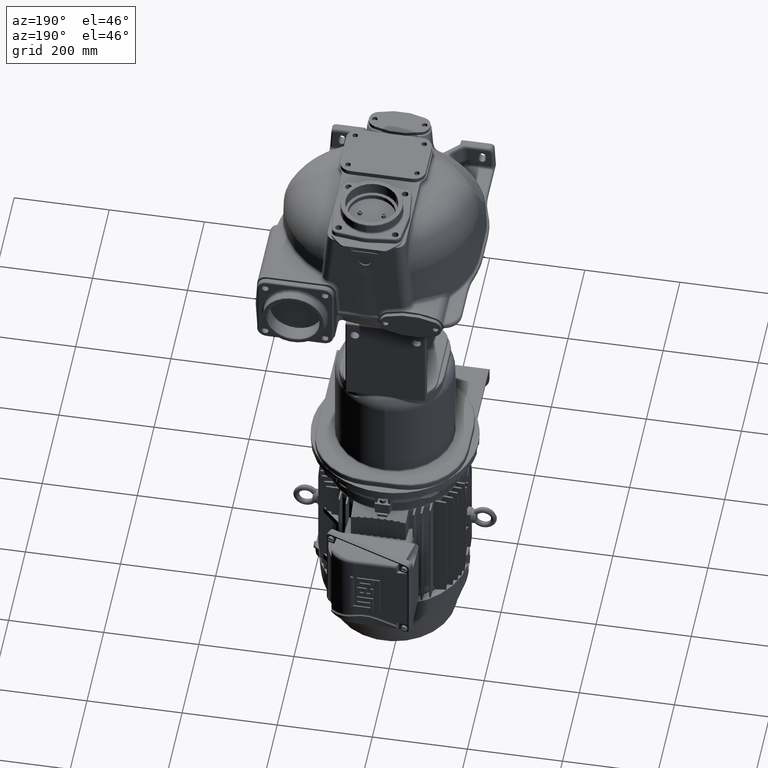
[diagram: clean part render]
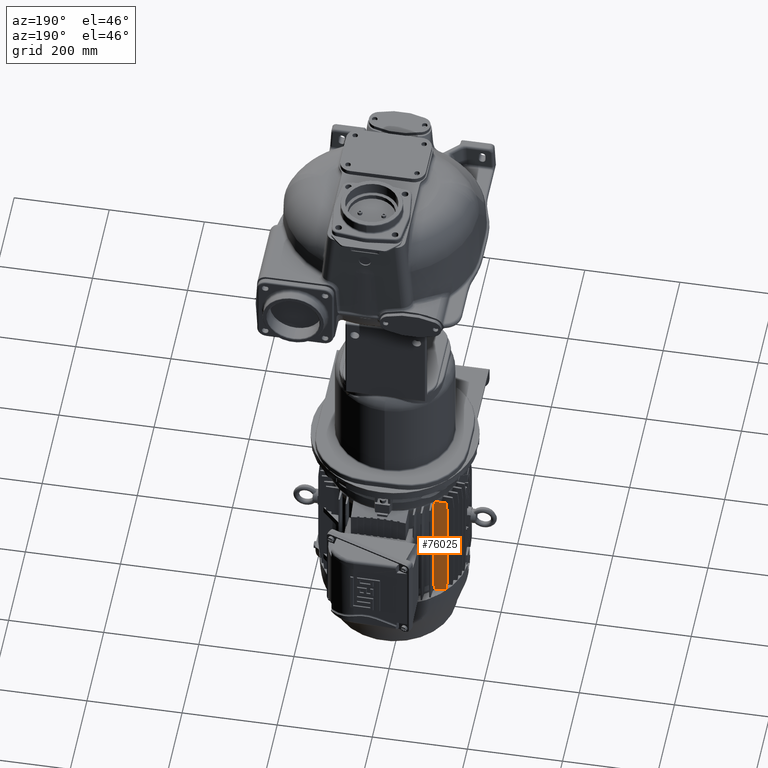
[diagram: same view with one face highlighted and labeled with its STEP entity id]
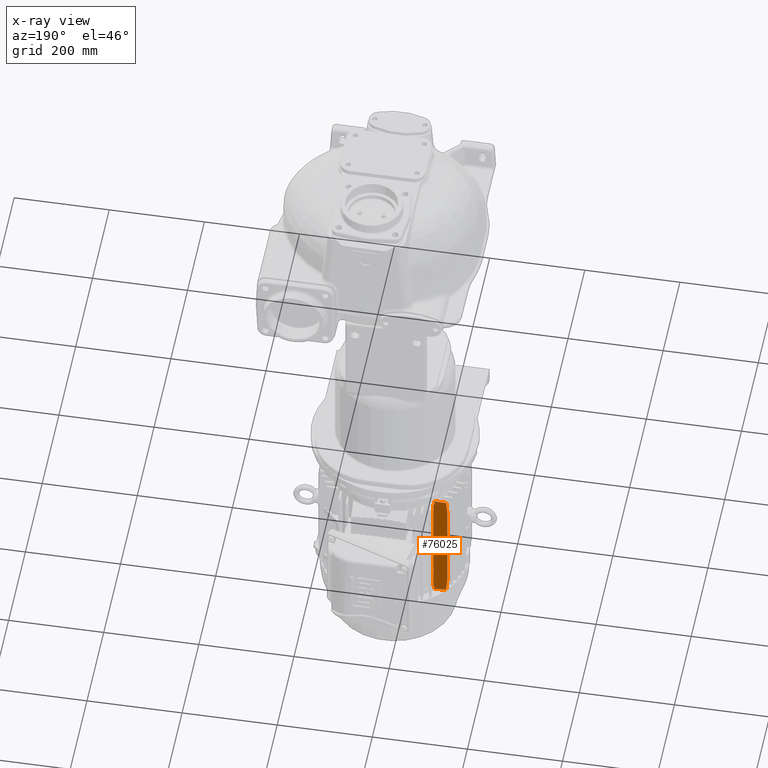
[diagram: x-ray of the same camera — body ghosted, the highlighted face saturated]
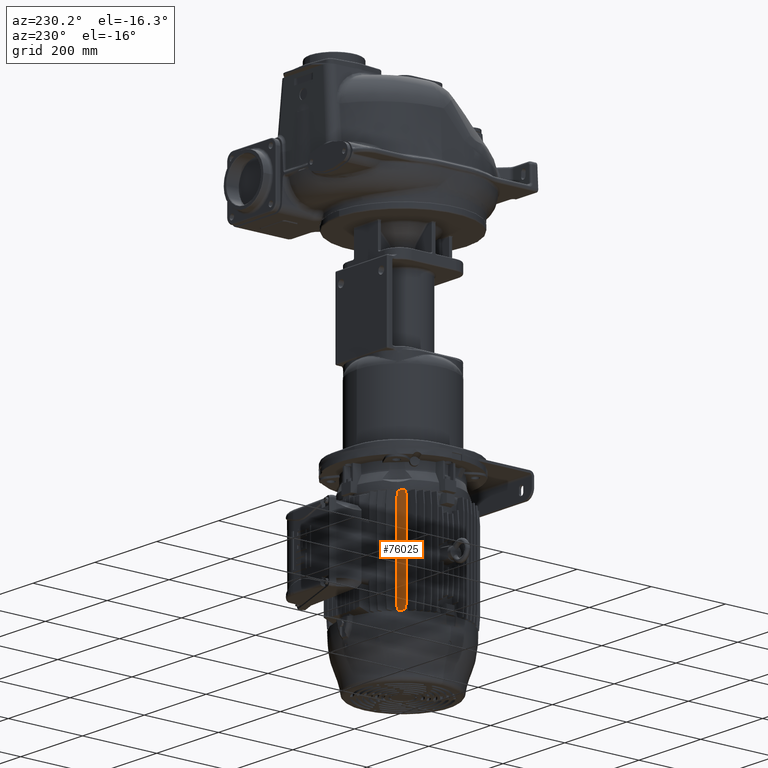
[diagram: same view with one face highlighted and labeled with its STEP entity id]
A machine part, auxiliary view. The second image highlights one B-rep face of the part: STEP entity #76025.
The next image is the same camera in x-ray: the body ghosted, the highlighted face saturated — about 0% of this face is hidden behind the body in this view.
A second angle (auxiliary view) of the same face is appended — the face is thin or edge-on in the first view.
In plain terms, the highlighted planar face has unit normal (0.0349, -0.9994, 0).
Its self-contained STEP definition (entity closure, byte-faithful):
#11937=DIRECTION('',(0.E0,-1.118896511170E-14,1.E0));
#11938=VECTOR('',#11937,5.080310671573E0);
#11939=CARTESIAN_POINT('',(-8.141914949487E1,3.175499585583E2,
-9.550375340094E2));
#11940=LINE('',#11939,#11938);
#18178=DIRECTION('',(-1.398620638962E-14,-1.118896511170E-14,1.E0));
#18179=VECTOR('',#18178,5.080310671573E0);
#18180=CARTESIAN_POINT('',(-8.141914949487E1,3.175499585583E2,
-6.986427766622E2));
#18181=LINE('',#18180,#18179);
#20622=CARTESIAN_POINT('',(-8.141914949487E1,3.175499585583E2,
-6.935624659906E2));
#20623=CARTESIAN_POINT('',(-8.389546970127E1,3.174634835512E2,
-6.937125929974E2));
#20624=CARTESIAN_POINT('',(-8.896721913120E1,3.172863740507E2,
-6.940260940994E2));
#20625=CARTESIAN_POINT('',(-9.688111103716E1,3.170100153402E2,
-6.945331010547E2));
#20626=CARTESIAN_POINT('',(-1.024632826689E2,3.168150804271E2,
-6.949024630499E2));
#20627=CARTESIAN_POINT('',(-1.053224325430E2,3.167152367134E2,
-6.950945351676E2));
#20645=DIRECTION('',(0.E0,0.E0,-1.E0));
#20646=VECTOR('',#20645,2.370833117139E2);
#20647=CARTESIAN_POINT('',(-7.864677210992E1,3.176467721099E2,
-7.057583441431E2));
#20648=LINE('',#20647,#20646);
#20649=DIRECTION('',(2.513375605311E-7,-1.209644282758E-9,-1.E0));
#20650=VECTOR('',#20649,1.979581359303E2);
#20651=CARTESIAN_POINT('',(-1.079921170745E2,3.166220120596E2,
-7.253217776635E2));
#20652=LINE('',#20651,#20650);
#20660=CARTESIAN_POINT('',(-1.079920673202E2,3.166220118201E2,
-9.232799135938E2));
#20661=CARTESIAN_POINT('',(-1.076956976152E2,3.166323612783E2,
-9.266196903133E2));
#20662=CARTESIAN_POINT('',(-1.071027728575E2,3.166530669313E2,
-9.333116556189E2));
#20663=CARTESIAN_POINT('',(-1.062129373495E2,3.166841394829E2,
-9.433867827753E2));
#20664=CARTESIAN_POINT('',(-1.056192053482E2,3.167048759678E2,
-9.501284336742E2));
#20665=CARTESIAN_POINT('',(-1.053223132301E2,3.167152436691E2,
-9.535054819032E2));
#20670=CARTESIAN_POINT('',(-1.079920673202E2,3.166220118201E2,
-9.232799135938E2));
#20684=CARTESIAN_POINT('',(-1.053223132301E2,3.167152436691E2,
-9.535054819032E2));
#20685=CARTESIAN_POINT('',(-1.024631863232E2,3.168150865807E2,
-9.536975523618E2));
#20686=CARTESIAN_POINT('',(-9.688097280759E1,3.170100188656E2,
-9.540669037389E2));
#20687=CARTESIAN_POINT('',(-8.896717399892E1,3.172863759987E2,
-9.545739098766E2));
#20688=CARTESIAN_POINT('',(-8.389545265747E1,3.174634841464E2,
-9.548874080359E2));
#20689=CARTESIAN_POINT('',(-8.141914949487E1,3.175499585583E2,
-9.550375340094E2));
#20695=CARTESIAN_POINT('',(-1.053224325430E2,3.167152367134E2,
-6.950945351676E2));
#20696=CARTESIAN_POINT('',(-1.056193381273E2,3.167048685419E2,
-6.984717366287E2));
#20697=CARTESIAN_POINT('',(-1.062129142275E2,3.166841418556E2,
-7.052137307231E2));
#20698=CARTESIAN_POINT('',(-1.071029285663E2,3.166530601994E2,
-7.152893984087E2));
#20699=CARTESIAN_POINT('',(-1.076957281829E2,3.166323621878E2,
-7.219817865395E2));
#20700=CARTESIAN_POINT('',(-1.079921170745E2,3.166220120596E2,
-7.253217776635E2));
#20713=CARTESIAN_POINT('',(-8.141914949487E1,3.175499585583E2,
-9.499572233378E2));
#20714=CARTESIAN_POINT('',(-8.111034494799E1,3.175607422507E2,
-9.491586193472E2));
#20715=CARTESIAN_POINT('',(-8.049325612585E1,3.175822914672E2,
-9.475667303611E2));
#20716=CARTESIAN_POINT('',(-7.956914849249E1,3.176145620169E2,
-9.451948677538E2));
#20717=CARTESIAN_POINT('',(-7.895406953237E1,3.176360410475E2,
-9.436242821538E2));
#20718=CARTESIAN_POINT('',(-7.864677210992E1,3.176467721099E2,
-9.428416558569E2));
#20725=CARTESIAN_POINT('',(-7.864677210992E1,3.176467721099E2,
-9.428416558569E2));
#21597=CARTESIAN_POINT('',(-7.864677210992E1,3.176467721099E2,
-7.057583441431E2));
#21598=CARTESIAN_POINT('',(-7.895406106777E1,3.176360413431E2,
-7.049757394039E2));
#21599=CARTESIAN_POINT('',(-7.956912881676E1,3.176145627040E2,
-7.034051825811E2));
#21600=CARTESIAN_POINT('',(-8.049323644172E1,3.175822921546E2,
-7.010333203269E2));
#21601=CARTESIAN_POINT('',(-8.111033654268E1,3.175607425442E2,
-6.994414023899E2));
#21602=CARTESIAN_POINT('',(-8.141914949487E1,3.175499585583E2,
-6.986427766622E2));
#21609=CARTESIAN_POINT('',(-7.864677210992E1,3.176467721099E2,
-7.057583441431E2));
#45371=CARTESIAN_POINT('',(-8.141914949487E1,3.175499585583E2,
-6.935624659906E2));
#45373=VERTEX_POINT('',#45371);
#45380=CARTESIAN_POINT('',(-8.141914949487E1,3.175499585583E2,
-6.986427766622E2));
#45381=VERTEX_POINT('',#45380);
#45525=CARTESIAN_POINT('',(-8.141914949487E1,3.175499585583E2,
-9.550375340094E2));
#45526=CARTESIAN_POINT('',(-8.141914949487E1,3.175499585583E2,
-9.499572233378E2));
#45527=VERTEX_POINT('',#45525);
#45528=VERTEX_POINT('',#45526);
#45985=CARTESIAN_POINT('',(-1.053223132301E2,3.167152436691E2,
-9.535054819032E2));
#45987=VERTEX_POINT('',#45985);
#46240=CARTESIAN_POINT('',(-1.053224325430E2,3.167152367134E2,
-6.950945351676E2));
#46242=VERTEX_POINT('',#46240);
#46452=VERTEX_POINT('',#20725);
#46458=VERTEX_POINT('',#21609);
#46463=CARTESIAN_POINT('',(-1.079921170745E2,3.166220120596E2,
-7.253217776635E2));
#46464=VERTEX_POINT('',#46463);
#46465=VERTEX_POINT('',#20670);
#76001=CARTESIAN_POINT('',(-1.079920673202E2,3.166220118201E2,-9.553E2));
#76002=DIRECTION('',(3.489949670501E-2,-9.993908270190E-1,0.E0));
#76003=DIRECTION('',(-9.993908270190E-1,-3.489949670501E-2,0.E0));
#76004=AXIS2_PLACEMENT_3D('',#76001,#76002,#76003);
#76005=PLANE('',#76004);
#76007=ORIENTED_EDGE('',*,*,#76006,.T.);
#76009=ORIENTED_EDGE('',*,*,#76008,.T.);
#76011=ORIENTED_EDGE('',*,*,#76010,.T.);
#76012=ORIENTED_EDGE('',*,*,#64975,.T.);
#76014=ORIENTED_EDGE('',*,*,#76013,.T.);
#76016=ORIENTED_EDGE('',*,*,#76015,.F.);
#76018=ORIENTED_EDGE('',*,*,#76017,.T.);
#76019=ORIENTED_EDGE('',*,*,#72803,.T.);
#76020=ORIENTED_EDGE('',*,*,#75992,.T.);
#76022=ORIENTED_EDGE('',*,*,#76021,.T.);
#76023=EDGE_LOOP('',(#76007,#76009,#76011,#76012,#76014,#76016,#76018,#76019,
#76020,#76022));
#76024=FACE_OUTER_BOUND('',#76023,.F.);
#76025=ADVANCED_FACE('',(#76024),#76005,.F.);
#20628=B_SPLINE_CURVE_WITH_KNOTS('',3,(#20622,#20623,#20624,#20625,#20626,
#20627),.UNSPECIFIED.,.F.,.F.,(4,1,1,4),(0.E0,3.333333333333E-1,
6.666666666667E-1,1.E0),.UNSPECIFIED.);
#20666=B_SPLINE_CURVE_WITH_KNOTS('',3,(#20660,#20661,#20662,#20663,#20664,
#20665),.UNSPECIFIED.,.F.,.F.,(4,1,1,4),(0.E0,3.333333333333E-1,
6.666666666667E-1,1.E0),.UNSPECIFIED.);
#20690=B_SPLINE_CURVE_WITH_KNOTS('',3,(#20684,#20685,#20686,#20687,#20688,
#20689),.UNSPECIFIED.,.F.,.F.,(4,1,1,4),(0.E0,3.333333333333E-1,
6.666666666667E-1,1.E0),.UNSPECIFIED.);
#20701=B_SPLINE_CURVE_WITH_KNOTS('',3,(#20695,#20696,#20697,#20698,#20699,
#20700),.UNSPECIFIED.,.F.,.F.,(4,1,1,4),(0.E0,3.333333333333E-1,
6.666666666667E-1,1.E0),.UNSPECIFIED.);
#20719=B_SPLINE_CURVE_WITH_KNOTS('',3,(#20713,#20714,#20715,#20716,#20717,
#20718),.UNSPECIFIED.,.F.,.F.,(4,1,1,4),(0.E0,3.333333333333E-1,
6.666666666667E-1,1.E0),.UNSPECIFIED.);
#21603=B_SPLINE_CURVE_WITH_KNOTS('',3,(#21597,#21598,#21599,#21600,#21601,
#21602),.UNSPECIFIED.,.F.,.F.,(4,1,1,4),(0.E0,3.333333333333E-1,
6.666666666667E-1,1.E0),.UNSPECIFIED.);
#64975=EDGE_CURVE('',#45527,#45528,#11940,.T.);
#72803=EDGE_CURVE('',#45381,#45373,#18181,.T.);
#75992=EDGE_CURVE('',#45373,#46242,#20628,.T.);
#76006=EDGE_CURVE('',#46464,#46465,#20652,.T.);
#76008=EDGE_CURVE('',#46465,#45987,#20666,.T.);
#76010=EDGE_CURVE('',#45987,#45527,#20690,.T.);
#76013=EDGE_CURVE('',#45528,#46452,#20719,.T.);
#76015=EDGE_CURVE('',#46458,#46452,#20648,.T.);
#76017=EDGE_CURVE('',#46458,#45381,#21603,.T.);
#76021=EDGE_CURVE('',#46242,#46464,#20701,.T.);